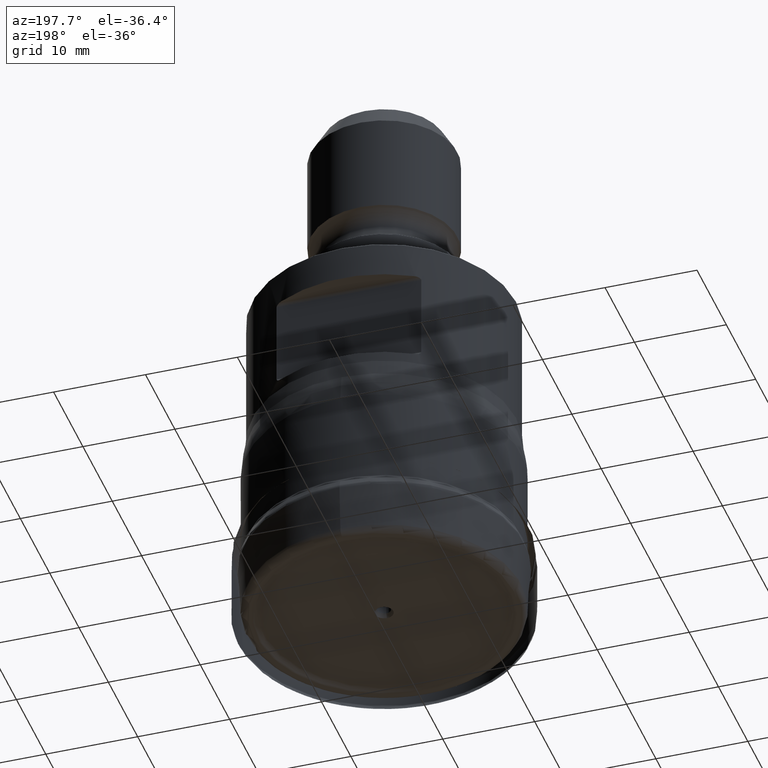
[diagram: clean part render]
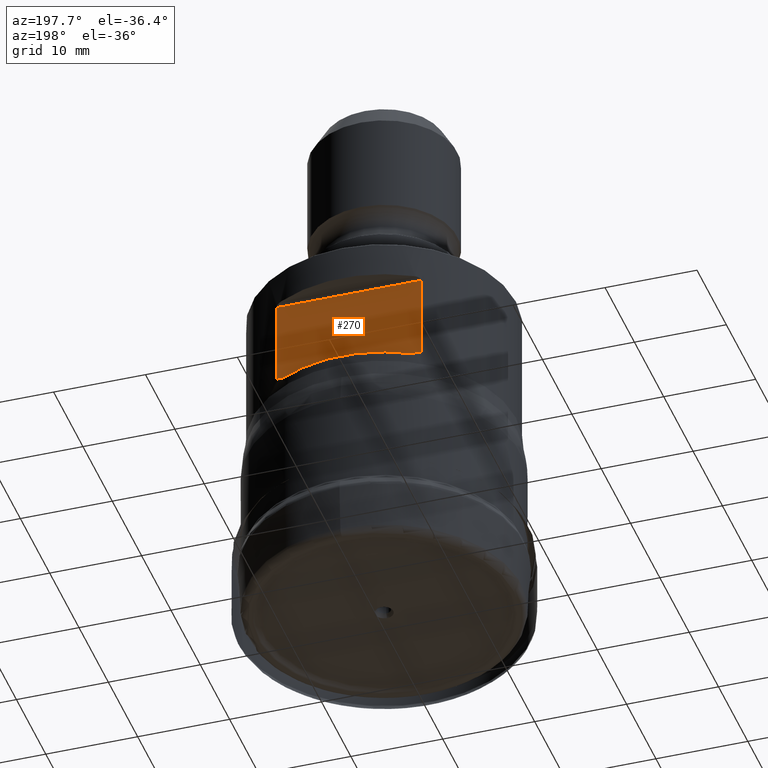
[diagram: same view with one face highlighted and labeled with its STEP entity id]
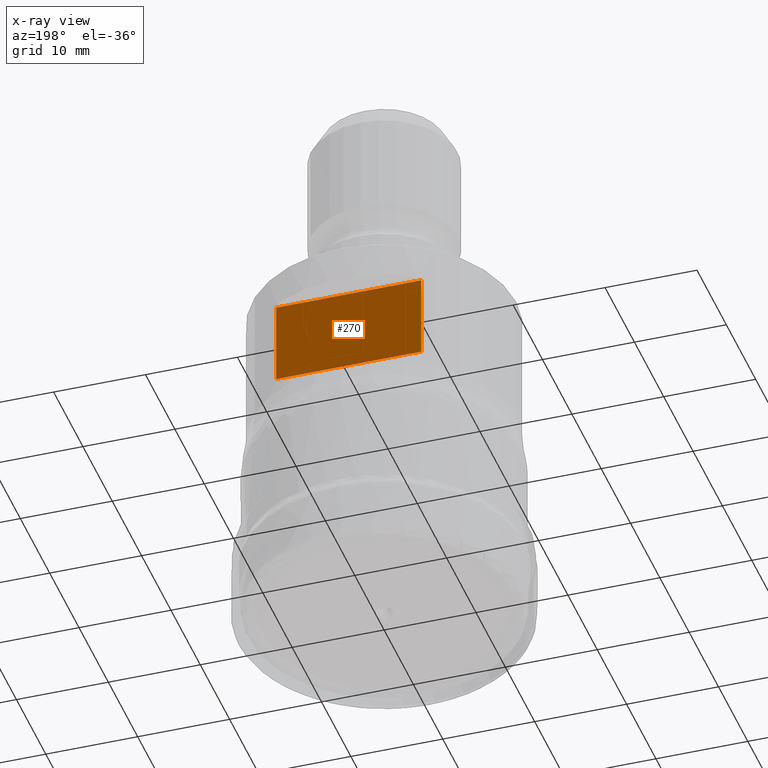
[diagram: x-ray of the same camera — body ghosted, the highlighted face saturated]
A machine part, auxiliary view. The second image highlights one B-rep face of the part: STEP entity #270.
The next image is the same camera in x-ray: the body ghosted, the highlighted face saturated — about 0% of this face is hidden behind the body in this view.
In plain terms, the highlighted planar face has unit normal (-0, -1, 0).
Its self-contained STEP definition (entity closure, byte-faithful):
#164=FACE_OUTER_BOUND('',#492,.T.);
#179=LINE('',#1593,#194);
#180=LINE('',#1634,#195);
#188=LINE('',#1843,#203);
#189=LINE('',#1844,#204);
#194=VECTOR('',#1105,1.);
#195=VECTOR('',#1108,1.);
#203=VECTOR('',#1222,1.);
#204=VECTOR('',#1223,1.);
#270=ADVANCED_FACE('',(#164),#306,.F.);
#306=PLANE('',#1039);
#492=EDGE_LOOP('',(#640,#641,#642,#643));
#640=ORIENTED_EDGE('',*,*,#788,.T.);
#641=ORIENTED_EDGE('',*,*,#827,.T.);
#642=ORIENTED_EDGE('',*,*,#792,.T.);
#643=ORIENTED_EDGE('',*,*,#828,.T.);
#714=VERTEX_POINT('',#1591);
#716=VERTEX_POINT('',#1594);
#719=VERTEX_POINT('',#1633);
#720=VERTEX_POINT('',#1635);
#788=EDGE_CURVE('',#716,#714,#179,.T.);
#792=EDGE_CURVE('',#720,#719,#180,.T.);
#827=EDGE_CURVE('',#714,#720,#188,.T.);
#828=EDGE_CURVE('',#719,#716,#189,.T.);
#1039=AXIS2_PLACEMENT_3D('',#1845,#1224,#1225);
#1105=DIRECTION('',(0.,-1.17145536458252E-15,-1.));
#1108=DIRECTION('',(0.,1.17145536458252E-15,1.));
#1222=DIRECTION('',(-1.,2.1958943039393E-15,-2.5723921624059E-30));
#1223=DIRECTION('',(1.,-2.1958943039393E-15,2.5723921624059E-30));
#1224=DIRECTION('',(-2.1958943039393E-15,-1.,9.97983016984843E-16));
#1225=DIRECTION('',(0.,9.97465998686664E-16,1.));
#1591=CARTESIAN_POINT('',(7.87090852443352,12.,24.5));
#1593=CARTESIAN_POINT('',(7.87090852443351,12.,-1.19757962038181E-14));
#1594=CARTESIAN_POINT('',(7.87090852443352,12.,33.7));
#1633=CARTESIAN_POINT('',(-7.87090852443347,12.0000000000001,33.7));
#1634=CARTESIAN_POINT('',(-7.87090852443346,12.,-1.19757962038181E-14));
#1635=CARTESIAN_POINT('',(-7.87090852443347,12.,24.5));
#1843=CARTESIAN_POINT('',(15.,12.,24.5));
#1844=CARTESIAN_POINT('',(15.,12.,33.7));
#1845=CARTESIAN_POINT('',(15.,12.,24.1));